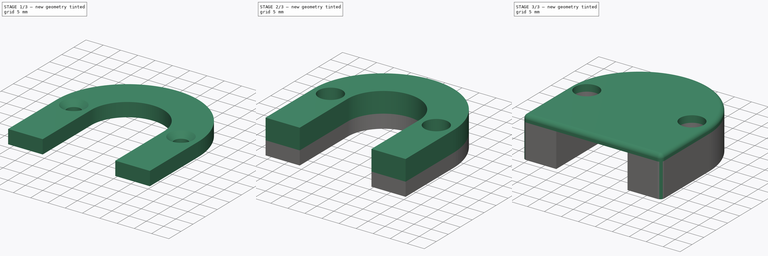
[diagram: build sequence overview — one tinted view per stage of 3, left to right]
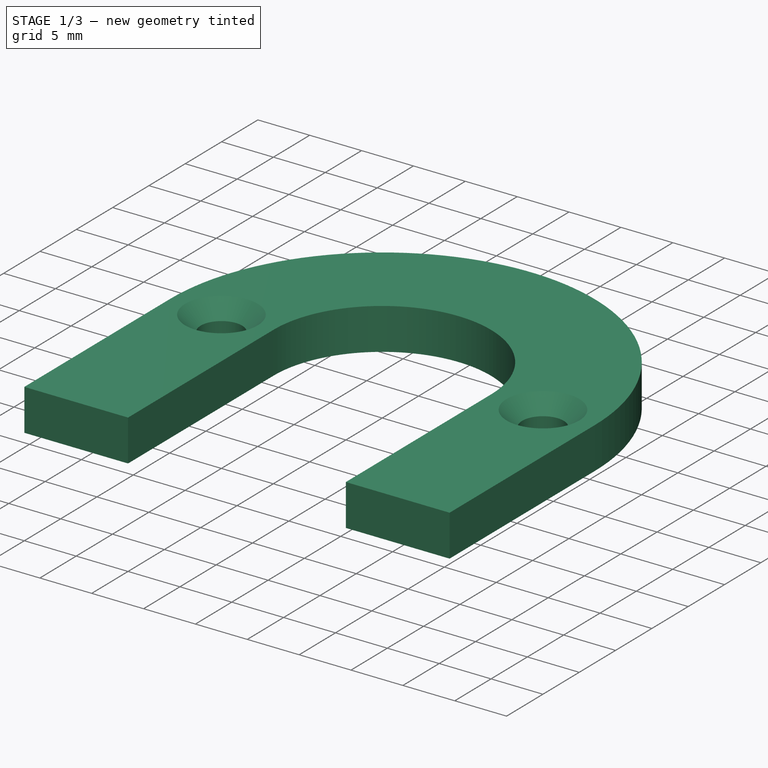
[diagram: stage 1 of 3 — iso view after this stage's code; geometry added in this stage tinted green]
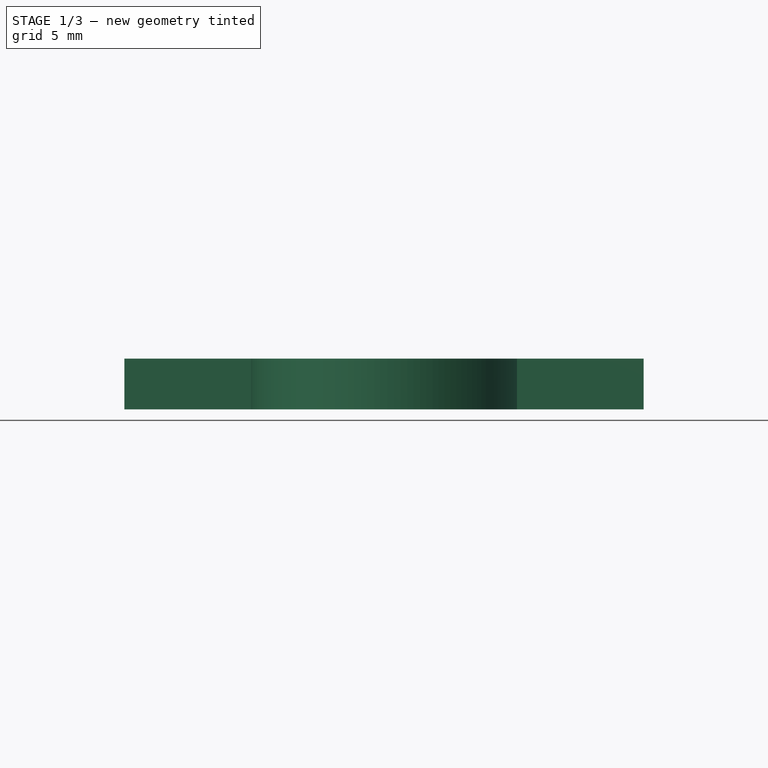
[diagram: stage 1 of 3 — front view after this stage's code; geometry added in this stage tinted green]
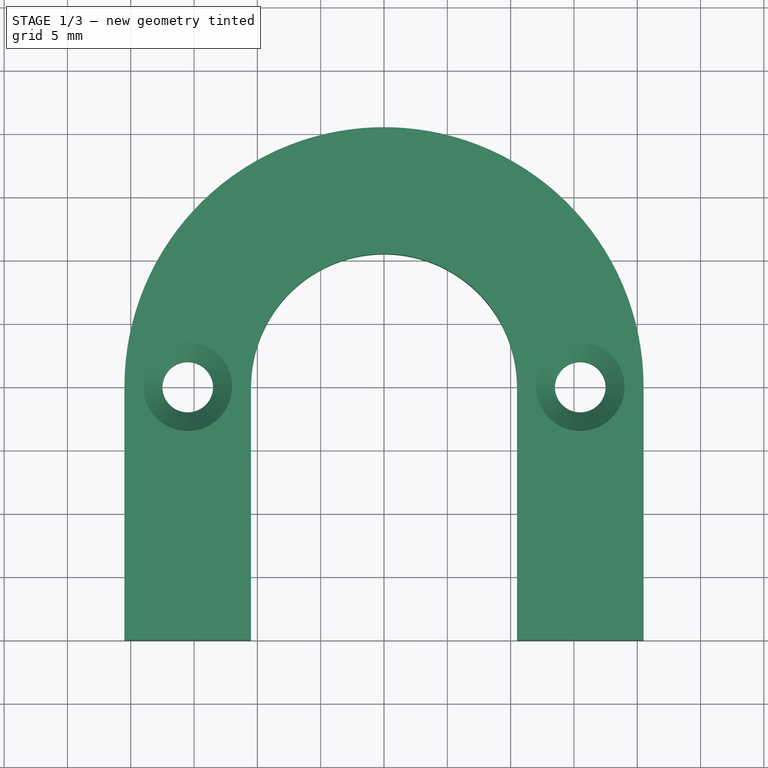
[diagram: stage 1 of 3 — top view after this stage's code; geometry added in this stage tinted green]
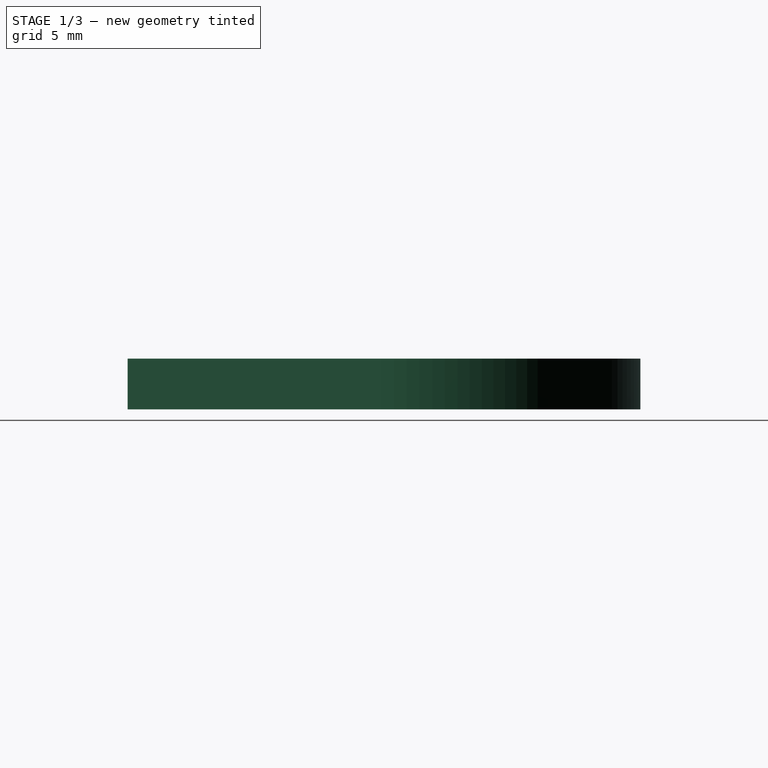
[diagram: stage 1 of 3 — right view after this stage's code; geometry added in this stage tinted green]
FCSTD DOCUMENT  (FreeCAD 0.20R29603 (Git))
Label: BikeWireCover
License: All rights reserved
LicenseURL: http://en.wikipedia.org/wiki/All_rights_reserved
objects: Sketcher::SketchObject×3, PartDesign::Pad×3, PartDesign::Chamfer×1, PartDesign::Fillet×1, PartDesign::Body×1
note: 14 computed .brp shape members not serialized (recipe doc carries the construction recipe); baked Part::Feature solids carry a one-line shape summary decoded from their .brp

FEATURE [Sketcher::SketchObject] Sketch  label="Mount"
  FullyConstrained = true
  expr: .Constraints.WallThickness = .Constraints.HalfWallThickness * 2
  sketch-geometry (12):
    g0: Circle CenterX=-15.5 CenterY=0 CenterZ=0 NormalX=0 NormalY=0 NormalZ=1 AngleXU=0 Radius=2
    g1: Circle CenterX=15.5 CenterY=0 CenterZ=0 NormalX=0 NormalY=0 NormalZ=1 AngleXU=0 Radius=2
    g2: LineSegment StartX=-20.5 StartY=1.3e-15 StartZ=0 EndX=-10.5 EndY=1.3e-15 EndZ=0
    g3: LineSegment StartX=-10.5 StartY=1.3e-15 StartZ=0 EndX=-10.5 EndY=-20 EndZ=0
    g4: LineSegment StartX=-10.5 StartY=-20 StartZ=0 EndX=-20.5 EndY=-20 EndZ=0
    g5: LineSegment StartX=-20.5 StartY=-20 StartZ=0 EndX=-20.5 EndY=0 EndZ=0
    g6: LineSegment StartX=10.5 StartY=0 StartZ=0 EndX=20.5 EndY=0 EndZ=0
    g7: LineSegment StartX=20.5 StartY=0 StartZ=0 EndX=20.5 EndY=-20 EndZ=0
    g8: LineSegment StartX=20.5 StartY=-20 StartZ=0 EndX=10.5 EndY=-20 EndZ=0
    g9: LineSegment StartX=10.5 StartY=-20 StartZ=0 EndX=10.5 EndY=0 EndZ=0
    g10: ArcOfCircle CenterX=0 CenterY=0 CenterZ=0 NormalX=0 NormalY=0 NormalZ=1 AngleXU=0 Radius=10.5 StartAngle=0 EndAngle=3.14159
    g11: ArcOfCircle CenterX=0 CenterY=0 CenterZ=0 NormalX=0 NormalY=0 NormalZ=1 AngleXU=0 Radius=20.5 StartAngle=0 EndAngle=3.14159
  constraints (33):
    c: PointOnObject(g0,g-1)
    c: Equal(g0,g1)
    c: DistanceX(g0,g1) = 31
    c: Diameter(g0) = 4
    c: Symmetric(g0,g1,g-2)
    c: Coincident(g2,g3)
    c: Coincident(g3,g4)
    c: Coincident(g4,g5)
    c: Coincident(g5,g2)
    c: Horizontal(g2)
    c: Horizontal(g4)
    c: Vertical(g3)
    c: Vertical(g5)
    c: PointOnObject(g2,g-1)
    c: DistanceY(g4,g2) = 20
    c: Coincident(g6,g7)
    c: Coincident(g7,g8)
    c: Coincident(g8,g9)
    c: Coincident(g9,g6)
    c: Horizontal(g6)
    c: Horizontal(g8)
    c: Vertical(g9)
    c: Symmetric(g4,g7,g-2)
    c: Symmetric(g6,g2,g-1)
    c: Coincident(g10,g-1)
    c: Coincident(g10,g2)
    c: Coincident(g10,g6)
    c: Coincident(g11,g10)
    c: Coincident(g11,g2)
    c: Coincident(g11,g6)
    c: DistanceX(g4,g3) = 10  'WallThickness'
    c: DistanceX(g0,g3) = 5  'HalfWallThickness'
    c: DistanceX(g3,g8) = 21  'InnerSize'
FEATURE [PartDesign::Pad] Pad  label="MountPad"
  Direction = (0,0,1)
  Length = 4
  Length2 = 10
  Profile = -> Sketch
  ReferenceAxis = -> Sketch [N_Axis]
  Type = 0
FEATURE [PartDesign::Chamfer] Chamfer
  Angle = 45
  Base = -> Pad [Edge27,Edge30]
  BaseFeature = -> Pad
  ChamferType = 0
  FlipDirection = false
  Size = 1.5
  Size2 = 1
  SupportTransform = false
  UseAllEdges = false
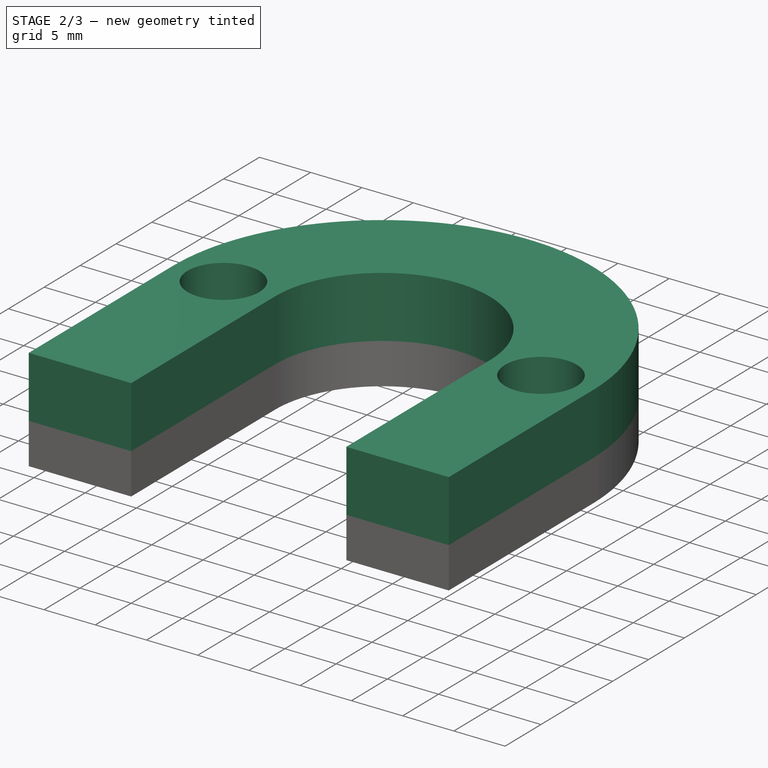
[diagram: stage 2 of 3 — iso view after this stage's code; geometry added in this stage tinted green]
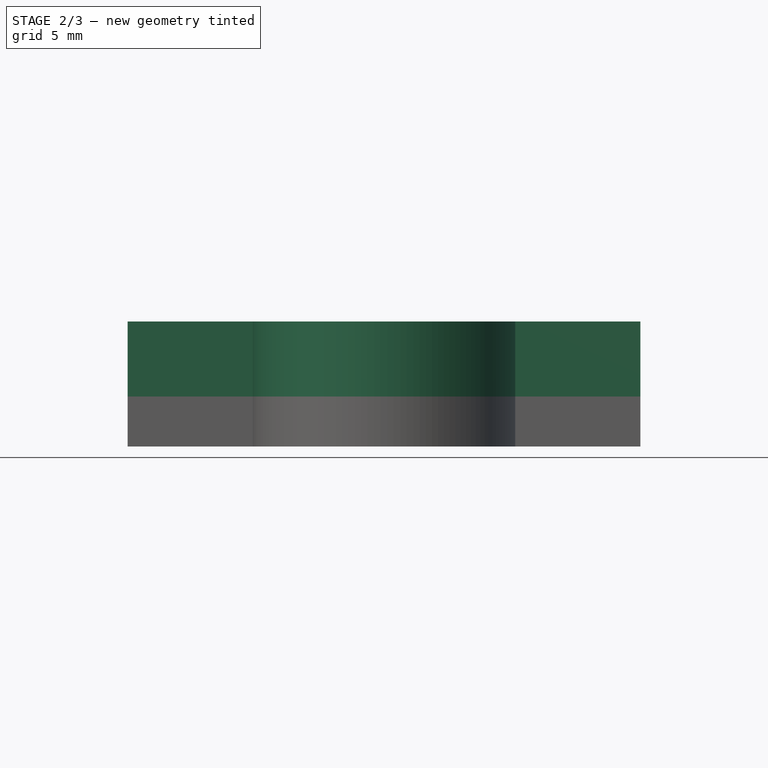
[diagram: stage 2 of 3 — front view after this stage's code; geometry added in this stage tinted green]
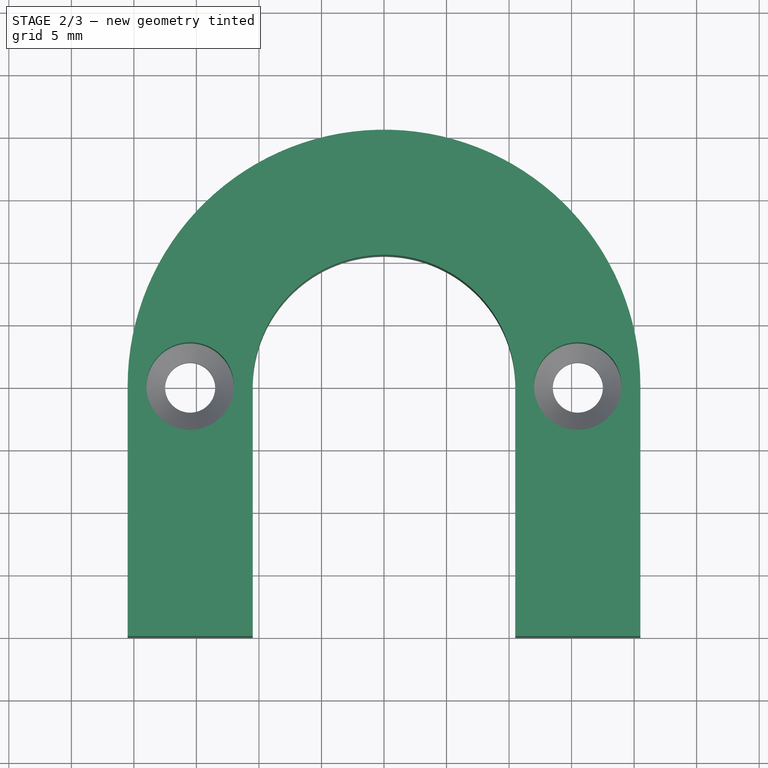
[diagram: stage 2 of 3 — top view after this stage's code; geometry added in this stage tinted green]
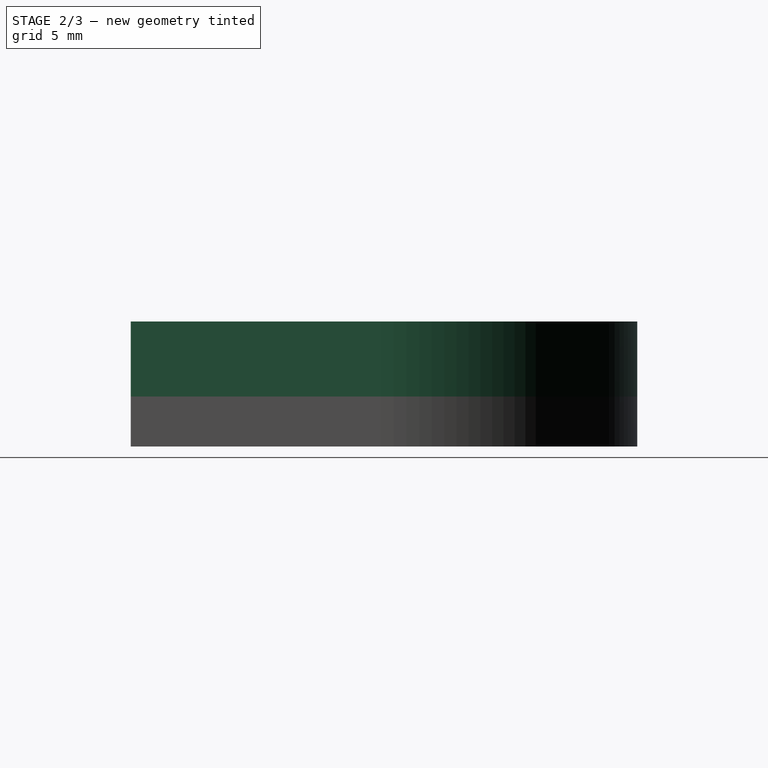
[diagram: stage 2 of 3 — right view after this stage's code; geometry added in this stage tinted green]
FEATURE [Sketcher::SketchObject] Sketch001
  ExternalGeometry = -> [Chamfer]
  FullyConstrained = true
  MapMode = 5
  Placement = pos=(0,0,4) rot=(0,0,1;0rad)
  Support = -> [Chamfer]
  sketch-geometry (10):
    g0: LineSegment StartX=-10.5 StartY=-20 StartZ=0 EndX=-20.5 EndY=-20 EndZ=0
    g1: LineSegment StartX=-20.5 StartY=-20 StartZ=0 EndX=-20.5 EndY=1.35039e-11 EndZ=0
    g2: LineSegment StartX=-10.5 StartY=-20 StartZ=0 EndX=-10.5 EndY=6.75e-14 EndZ=0
    g3: LineSegment StartX=10.5 StartY=-1.87e-14 StartZ=0 EndX=10.5 EndY=-20 EndZ=0
    g4: LineSegment StartX=10.5 StartY=-20 StartZ=0 EndX=20.5 EndY=-20 EndZ=0
    g5: LineSegment StartX=20.5 StartY=-20 StartZ=0 EndX=20.5 EndY=2.4585e-12 EndZ=0
    g6: Circle CenterX=-15.5 CenterY=0 CenterZ=0 NormalX=0 NormalY=0 NormalZ=1 AngleXU=0 Radius=3.5
    g7: Circle CenterX=15.5 CenterY=0 CenterZ=0 NormalX=0 NormalY=0 NormalZ=1 AngleXU=0 Radius=3.5
    g8: ArcOfCircle CenterX=0 CenterY=0 CenterZ=0 NormalX=0 NormalY=0 NormalZ=1 AngleXU=0 Radius=10.5 StartAngle=-1.8e-15 EndAngle=3.14159
    g9: ArcOfCircle CenterX=0 CenterY=0 CenterZ=0 NormalX=0 NormalY=0 NormalZ=1 AngleXU=0 Radius=20.5 StartAngle=1.2e-13 EndAngle=3.14159
  constraints (22):
    c: Coincident(g0,g-4)
    c: Coincident(g0,g-10)
    c: Coincident(g1,g0)
    c: Coincident(g1,g-10)
    c: Coincident(g2,g0)
    c: Coincident(g2,g-5)
    c: Coincident(g3,g-6)
    c: Coincident(g3,g-8)
    c: Coincident(g4,g3)
    c: Coincident(g4,g-8)
    c: Coincident(g5,g4)
    c: Coincident(g5,g-9)
    c: Coincident(g6,g-11)
    c: Equal(g6,g-11)
    c: Coincident(g7,g-12)
    c: Equal(g7,g-12)
    c: Coincident(g8,g-9)
    c: Coincident(g8,g2)
    c: Coincident(g8,g3)
    c: Coincident(g9,g8)
    c: Coincident(g9,g1)
    c: Coincident(g9,g5)
FEATURE [PartDesign::Pad] Pad001  label="WallPad"
  BaseFeature = -> Chamfer
  Direction = (0,0,1)
  Length = 6
  Length2 = 10
  Profile = -> Sketch001
  ReferenceAxis = -> Sketch001 [N_Axis]
  Type = 0
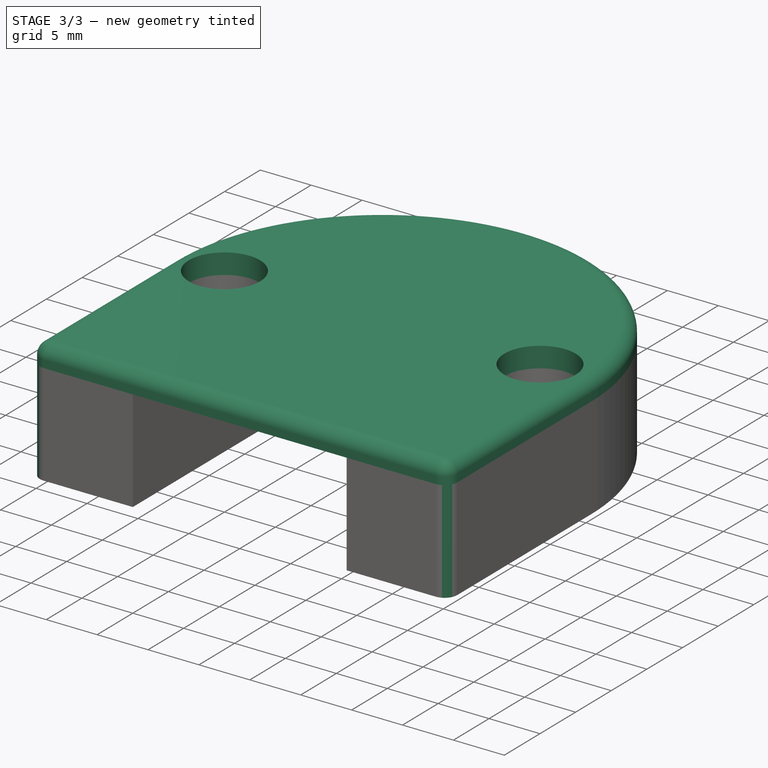
[diagram: stage 3 of 3 — iso view after this stage's code; geometry added in this stage tinted green]
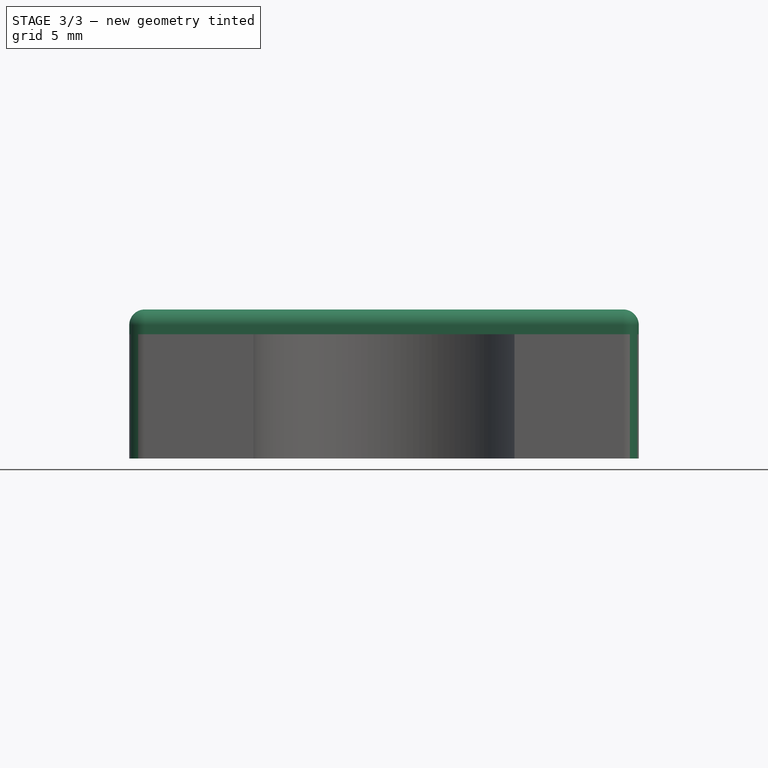
[diagram: stage 3 of 3 — front view after this stage's code; geometry added in this stage tinted green]
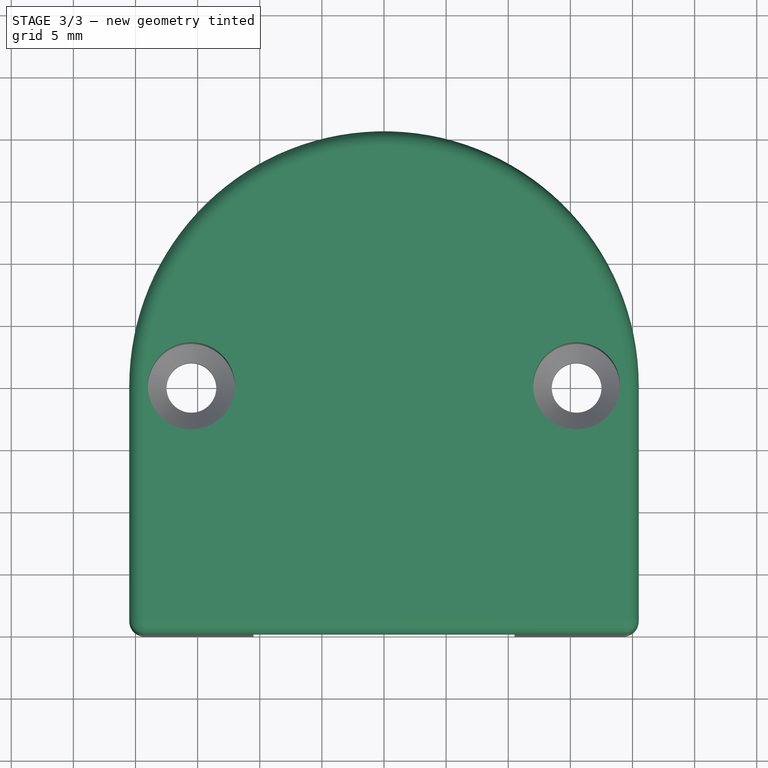
[diagram: stage 3 of 3 — top view after this stage's code; geometry added in this stage tinted green]
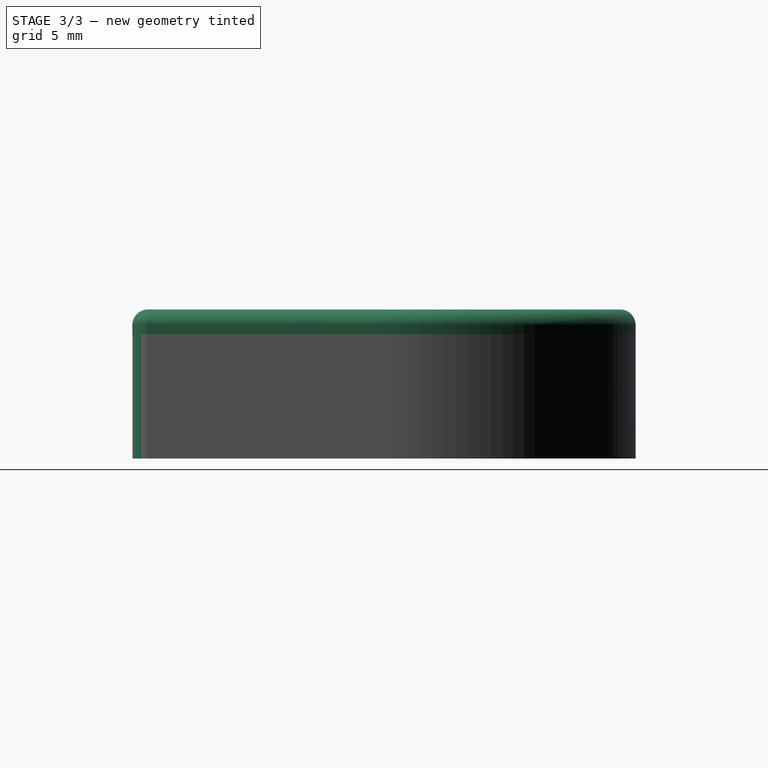
[diagram: stage 3 of 3 — right view after this stage's code; geometry added in this stage tinted green]
FEATURE [Sketcher::SketchObject] Sketch002
  ExternalGeometry = -> [Pad001]
  FullyConstrained = true
  MapMode = 5
  Placement = pos=(0,0,10) rot=(0,0,1;0rad)
  Support = -> [Pad001]
  sketch-geometry (6):
    g0: LineSegment StartX=-20.5 StartY=-20 StartZ=0 EndX=20.5 EndY=-20 EndZ=0
    g1: LineSegment StartX=20.5 StartY=-20 StartZ=0 EndX=20.5 EndY=0 EndZ=0
    g2: LineSegment StartX=-20.5 StartY=5.65395e-08 StartZ=0 EndX=-20.5 EndY=-20 EndZ=0
    g3: ArcOfCircle CenterX=0 CenterY=0 CenterZ=0 NormalX=0 NormalY=0 NormalZ=1 AngleXU=0 Radius=20.5 StartAngle=0 EndAngle=3.14159
    g4: Circle CenterX=-15.5 CenterY=0 CenterZ=0 NormalX=0 NormalY=0 NormalZ=1 AngleXU=0 Radius=3.5
    g5: Circle CenterX=15.5 CenterY=0 CenterZ=0 NormalX=0 NormalY=0 NormalZ=1 AngleXU=0 Radius=3.5
  constraints (14):
    c: Coincident(g0,g1)
    c: Coincident(g2,g0)
    c: Horizontal(g0)
    c: Vertical(g1)
    c: Vertical(g2)
    c: Coincident(g0,g-3)
    c: Coincident(g1,g-4)
    c: Coincident(g3,g-1)
    c: Coincident(g3,g2)
    c: Coincident(g3,g1)
    c: Coincident(g4,g-5)
    c: Coincident(g5,g-6)
    c: Equal(g4,g-5)
    c: Equal(g5,g-6)
FEATURE [PartDesign::Pad] Pad002  label="RoofPad"
  BaseFeature = -> Pad001
  Direction = (0,0,1)
  Length = 2
  Length2 = 10
  Profile = -> Sketch002
  ReferenceAxis = -> Sketch002 [N_Axis]
  Type = 0
FEATURE [PartDesign::Fillet] Fillet
  Base = -> Pad002 [Edge28,Edge48,Edge62,Edge58,Edge57,Edge55,Edge56,Edge60,Edge37,Edge18]
  BaseFeature = -> Pad002
  Radius = 1.25
  SupportTransform = false
  UseAllEdges = false
FEATURE [PartDesign::Body] Body
  Group = -> [Sketch,Pad,Chamfer,Sketch001,Pad001,Sketch002,Pad002,Fillet]
  Origin = -> Origin
  Tip = -> Fillet
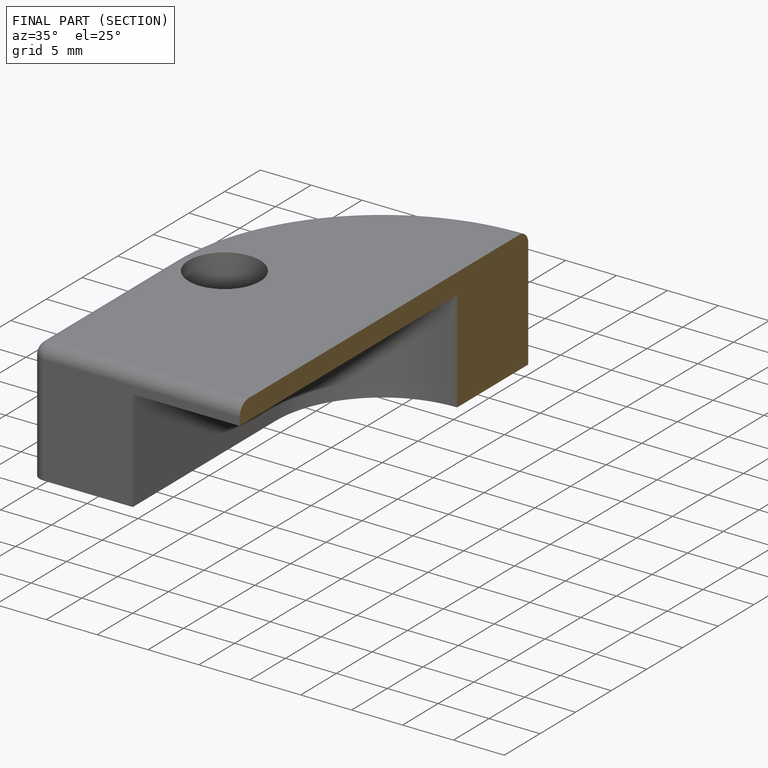
[diagram: finished part — half-section view (interior)]
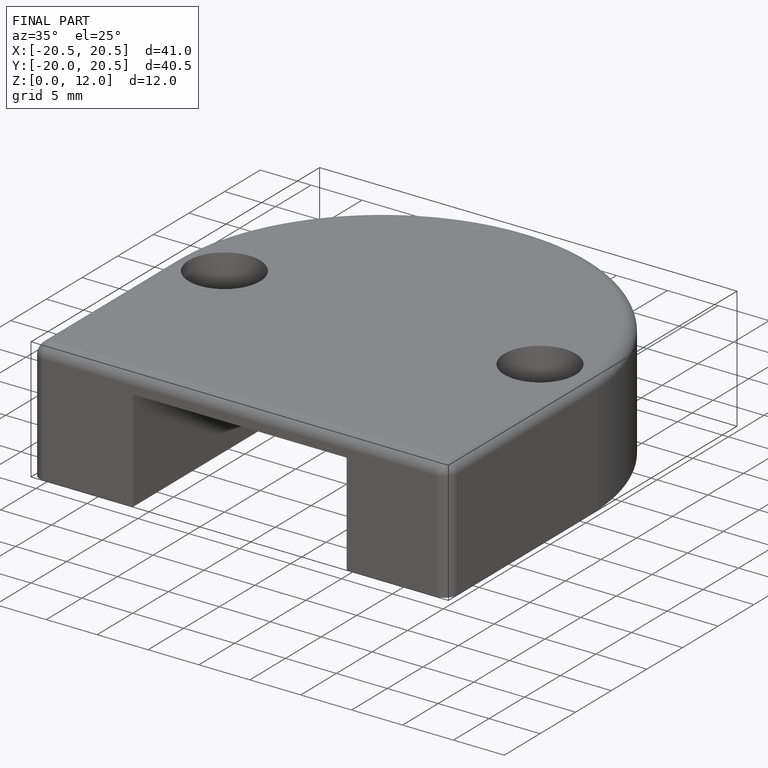
[diagram: finished part — iso view with bounding-box wireframe]
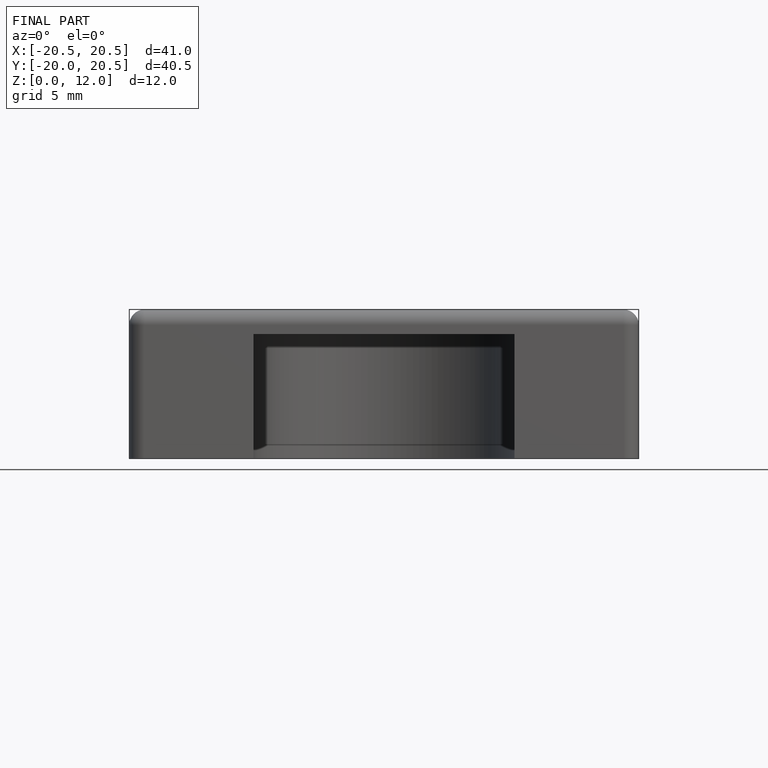
[diagram: finished part — front view with bounding-box wireframe]
